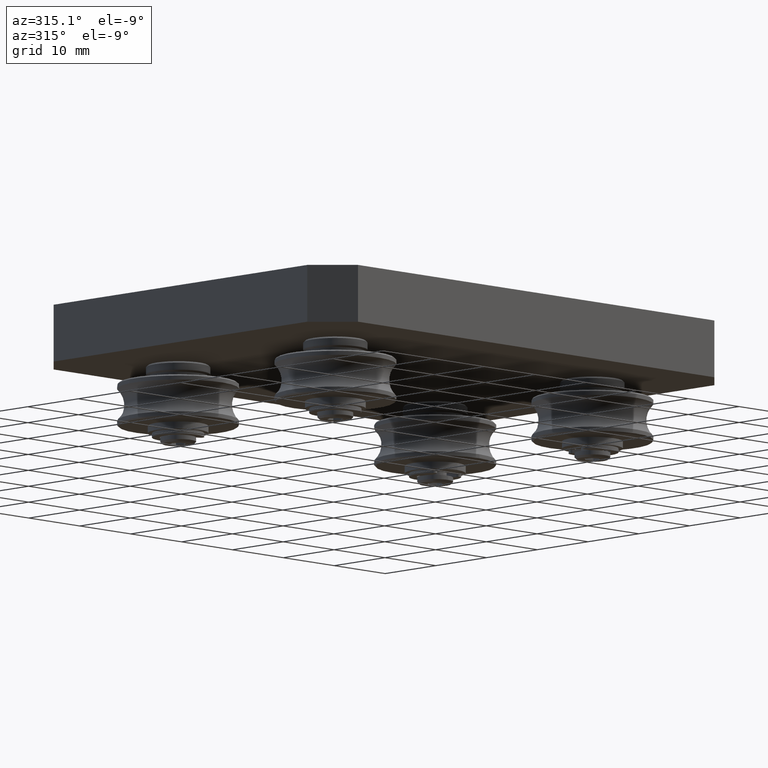
[diagram: clean part render]
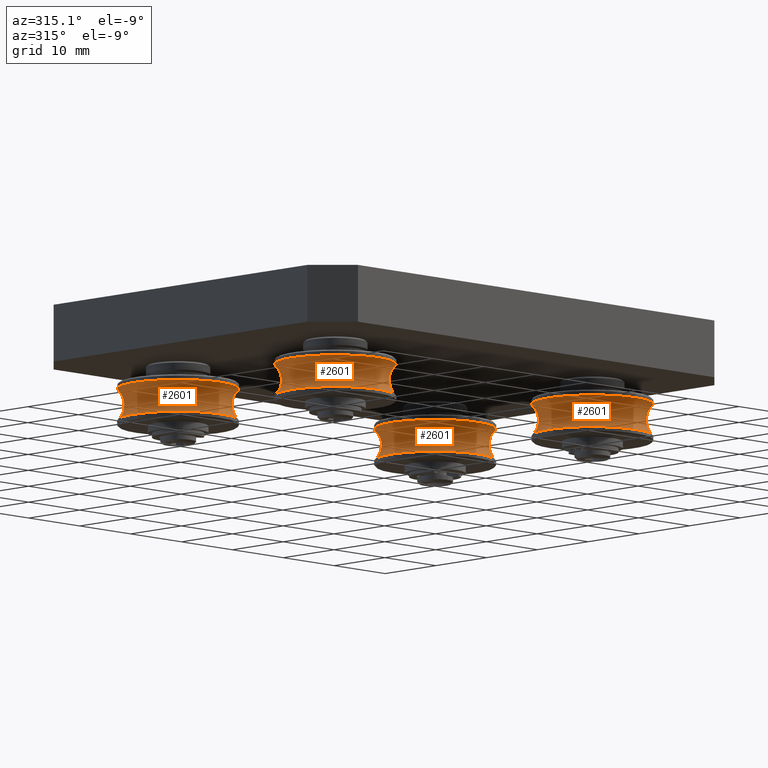
[diagram: same view with one multi-face feature highlighted, each face labeled with its STEP entity id]
A machine part, auxiliary view. The highlighted faces form ONE feature: a constant-radius fillet chain: 4 tangent blend faces with common blend radius 3 mm. The faces share edges in the B-rep.
Their STEP definitions:
[1] entity #2601 (Torus):
#83=TOROIDAL_SURFACE('',#3061,10.5,3.);
#288=CIRCLE('',#3046,8.5);
#289=CIRCLE('',#3047,8.5);
#293=CIRCLE('',#3053,8.5);
#294=CIRCLE('',#3054,8.5);
#298=CIRCLE('',#3062,3.);
#456=FACE_OUTER_BOUND('',#642,.T.);
#642=EDGE_LOOP('',(#2179,#2180,#2181,#2182,#2183,#2184));
#1254=VERTEX_POINT('',#4513);
#1255=VERTEX_POINT('',#4514);
#1259=VERTEX_POINT('',#4527);
#1260=VERTEX_POINT('',#4529);
#1566=EDGE_CURVE('',#1254,#1255,#288,.T.);
#1568=EDGE_CURVE('',#1255,#1254,#289,.T.);
#1574=EDGE_CURVE('',#1259,#1260,#293,.T.);
#1575=EDGE_CURVE('',#1260,#1259,#294,.T.);
#1580=EDGE_CURVE('',#1255,#1260,#298,.T.);
#2179=ORIENTED_EDGE('',*,*,#1566,.T.);
#2180=ORIENTED_EDGE('',*,*,#1580,.T.);
#2181=ORIENTED_EDGE('',*,*,#1574,.F.);
#2182=ORIENTED_EDGE('',*,*,#1575,.F.);
#2183=ORIENTED_EDGE('',*,*,#1580,.F.);
#2184=ORIENTED_EDGE('',*,*,#1568,.T.);
#2601=ADVANCED_FACE('',(#456),#83,.F.);
#3046=AXIS2_PLACEMENT_3D('',#4515,#3719,#3720);
#3047=AXIS2_PLACEMENT_3D('',#4517,#3722,#3723);
#3053=AXIS2_PLACEMENT_3D('',#4530,#3736,#3737);
#3054=AXIS2_PLACEMENT_3D('',#4531,#3738,#3739);
#3061=AXIS2_PLACEMENT_3D('',#4542,#3753,#3754);
#3062=AXIS2_PLACEMENT_3D('',#4543,#3755,#3756);
#3719=DIRECTION('center_axis',(1.,0.,0.));
#3720=DIRECTION('ref_axis',(0.,1.,0.));
#3722=DIRECTION('center_axis',(1.,0.,0.));
#3723=DIRECTION('ref_axis',(0.,1.,0.));
#3736=DIRECTION('center_axis',(1.,0.,0.));
#3737=DIRECTION('ref_axis',(0.,1.,0.));
#3738=DIRECTION('center_axis',(1.,0.,0.));
#3739=DIRECTION('ref_axis',(0.,1.,0.));
#3753=DIRECTION('center_axis',(1.,0.,0.));
#3754=DIRECTION('ref_axis',(0.,0.,-1.));
#3755=DIRECTION('center_axis',(0.,-1.,-1.22464679914735E-16));
#3756=DIRECTION('ref_axis',(0.,-1.22464679914735E-16,1.));
#4513=CARTESIAN_POINT('',(-2.23606797749979,-8.5,-1.04094977927525E-15));
#4514=CARTESIAN_POINT('',(-2.23606797749979,-1.04094977927525E-15,8.5));
#4515=CARTESIAN_POINT('Origin',(-2.23606797749979,0.,0.));
#4517=CARTESIAN_POINT('Origin',(-2.23606797749979,0.,0.));
#4527=CARTESIAN_POINT('',(2.23606797749979,-8.5,-1.04094977927525E-15));
#4529=CARTESIAN_POINT('',(2.23606797749979,-1.04094977927525E-15,8.5));
#4530=CARTESIAN_POINT('Origin',(2.23606797749979,0.,0.));
#4531=CARTESIAN_POINT('Origin',(2.23606797749979,0.,0.));
#4542=CARTESIAN_POINT('Origin',(0.,0.,0.));
#4543=CARTESIAN_POINT('Origin',(0.,-1.28587913910472E-15,10.5));
[2] entity #2601 (Torus):
#83=TOROIDAL_SURFACE('',#3061,10.5,3.);
#288=CIRCLE('',#3046,8.5);
#289=CIRCLE('',#3047,8.5);
#293=CIRCLE('',#3053,8.5);
#294=CIRCLE('',#3054,8.5);
#298=CIRCLE('',#3062,3.);
#456=FACE_OUTER_BOUND('',#642,.T.);
#642=EDGE_LOOP('',(#2179,#2180,#2181,#2182,#2183,#2184));
#1254=VERTEX_POINT('',#4513);
#1255=VERTEX_POINT('',#4514);
#1259=VERTEX_POINT('',#4527);
#1260=VERTEX_POINT('',#4529);
#1566=EDGE_CURVE('',#1254,#1255,#288,.T.);
#1568=EDGE_CURVE('',#1255,#1254,#289,.T.);
#1574=EDGE_CURVE('',#1259,#1260,#293,.T.);
#1575=EDGE_CURVE('',#1260,#1259,#294,.T.);
#1580=EDGE_CURVE('',#1255,#1260,#298,.T.);
#2179=ORIENTED_EDGE('',*,*,#1566,.T.);
#2180=ORIENTED_EDGE('',*,*,#1580,.T.);
#2181=ORIENTED_EDGE('',*,*,#1574,.F.);
#2182=ORIENTED_EDGE('',*,*,#1575,.F.);
#2183=ORIENTED_EDGE('',*,*,#1580,.F.);
#2184=ORIENTED_EDGE('',*,*,#1568,.T.);
#2601=ADVANCED_FACE('',(#456),#83,.F.);
#3046=AXIS2_PLACEMENT_3D('',#4515,#3719,#3720);
#3047=AXIS2_PLACEMENT_3D('',#4517,#3722,#3723);
#3053=AXIS2_PLACEMENT_3D('',#4530,#3736,#3737);
#3054=AXIS2_PLACEMENT_3D('',#4531,#3738,#3739);
#3061=AXIS2_PLACEMENT_3D('',#4542,#3753,#3754);
#3062=AXIS2_PLACEMENT_3D('',#4543,#3755,#3756);
#3719=DIRECTION('center_axis',(1.,0.,0.));
#3720=DIRECTION('ref_axis',(0.,1.,0.));
#3722=DIRECTION('center_axis',(1.,0.,0.));
#3723=DIRECTION('ref_axis',(0.,1.,0.));
#3736=DIRECTION('center_axis',(1.,0.,0.));
#3737=DIRECTION('ref_axis',(0.,1.,0.));
#3738=DIRECTION('center_axis',(1.,0.,0.));
#3739=DIRECTION('ref_axis',(0.,1.,0.));
#3753=DIRECTION('center_axis',(1.,0.,0.));
#3754=DIRECTION('ref_axis',(0.,0.,-1.));
#3755=DIRECTION('center_axis',(0.,-1.,-1.22464679914735E-16));
#3756=DIRECTION('ref_axis',(0.,-1.22464679914735E-16,1.));
#4513=CARTESIAN_POINT('',(-2.23606797749979,-8.5,-1.04094977927525E-15));
#4514=CARTESIAN_POINT('',(-2.23606797749979,-1.04094977927525E-15,8.5));
#4515=CARTESIAN_POINT('Origin',(-2.23606797749979,0.,0.));
#4517=CARTESIAN_POINT('Origin',(-2.23606797749979,0.,0.));
#4527=CARTESIAN_POINT('',(2.23606797749979,-8.5,-1.04094977927525E-15));
#4529=CARTESIAN_POINT('',(2.23606797749979,-1.04094977927525E-15,8.5));
#4530=CARTESIAN_POINT('Origin',(2.23606797749979,0.,0.));
#4531=CARTESIAN_POINT('Origin',(2.23606797749979,0.,0.));
#4542=CARTESIAN_POINT('Origin',(0.,0.,0.));
#4543=CARTESIAN_POINT('Origin',(0.,-1.28587913910472E-15,10.5));
[3] entity #2601 (Torus):
#83=TOROIDAL_SURFACE('',#3061,10.5,3.);
#288=CIRCLE('',#3046,8.5);
#289=CIRCLE('',#3047,8.5);
#293=CIRCLE('',#3053,8.5);
#294=CIRCLE('',#3054,8.5);
#298=CIRCLE('',#3062,3.);
#456=FACE_OUTER_BOUND('',#642,.T.);
#642=EDGE_LOOP('',(#2179,#2180,#2181,#2182,#2183,#2184));
#1254=VERTEX_POINT('',#4513);
#1255=VERTEX_POINT('',#4514);
#1259=VERTEX_POINT('',#4527);
#1260=VERTEX_POINT('',#4529);
#1566=EDGE_CURVE('',#1254,#1255,#288,.T.);
#1568=EDGE_CURVE('',#1255,#1254,#289,.T.);
#1574=EDGE_CURVE('',#1259,#1260,#293,.T.);
#1575=EDGE_CURVE('',#1260,#1259,#294,.T.);
#1580=EDGE_CURVE('',#1255,#1260,#298,.T.);
#2179=ORIENTED_EDGE('',*,*,#1566,.T.);
#2180=ORIENTED_EDGE('',*,*,#1580,.T.);
#2181=ORIENTED_EDGE('',*,*,#1574,.F.);
#2182=ORIENTED_EDGE('',*,*,#1575,.F.);
#2183=ORIENTED_EDGE('',*,*,#1580,.F.);
#2184=ORIENTED_EDGE('',*,*,#1568,.T.);
#2601=ADVANCED_FACE('',(#456),#83,.F.);
#3046=AXIS2_PLACEMENT_3D('',#4515,#3719,#3720);
#3047=AXIS2_PLACEMENT_3D('',#4517,#3722,#3723);
#3053=AXIS2_PLACEMENT_3D('',#4530,#3736,#3737);
#3054=AXIS2_PLACEMENT_3D('',#4531,#3738,#3739);
#3061=AXIS2_PLACEMENT_3D('',#4542,#3753,#3754);
#3062=AXIS2_PLACEMENT_3D('',#4543,#3755,#3756);
#3719=DIRECTION('center_axis',(1.,0.,0.));
#3720=DIRECTION('ref_axis',(0.,1.,0.));
#3722=DIRECTION('center_axis',(1.,0.,0.));
#3723=DIRECTION('ref_axis',(0.,1.,0.));
#3736=DIRECTION('center_axis',(1.,0.,0.));
#3737=DIRECTION('ref_axis',(0.,1.,0.));
#3738=DIRECTION('center_axis',(1.,0.,0.));
#3739=DIRECTION('ref_axis',(0.,1.,0.));
#3753=DIRECTION('center_axis',(1.,0.,0.));
#3754=DIRECTION('ref_axis',(0.,0.,-1.));
#3755=DIRECTION('center_axis',(0.,-1.,-1.22464679914735E-16));
#3756=DIRECTION('ref_axis',(0.,-1.22464679914735E-16,1.));
#4513=CARTESIAN_POINT('',(-2.23606797749979,-8.5,-1.04094977927525E-15));
#4514=CARTESIAN_POINT('',(-2.23606797749979,-1.04094977927525E-15,8.5));
#4515=CARTESIAN_POINT('Origin',(-2.23606797749979,0.,0.));
#4517=CARTESIAN_POINT('Origin',(-2.23606797749979,0.,0.));
#4527=CARTESIAN_POINT('',(2.23606797749979,-8.5,-1.04094977927525E-15));
#4529=CARTESIAN_POINT('',(2.23606797749979,-1.04094977927525E-15,8.5));
#4530=CARTESIAN_POINT('Origin',(2.23606797749979,0.,0.));
#4531=CARTESIAN_POINT('Origin',(2.23606797749979,0.,0.));
#4542=CARTESIAN_POINT('Origin',(0.,0.,0.));
#4543=CARTESIAN_POINT('Origin',(0.,-1.28587913910472E-15,10.5));
[4] entity #2601 (Torus):
#83=TOROIDAL_SURFACE('',#3061,10.5,3.);
#288=CIRCLE('',#3046,8.5);
#289=CIRCLE('',#3047,8.5);
#293=CIRCLE('',#3053,8.5);
#294=CIRCLE('',#3054,8.5);
#298=CIRCLE('',#3062,3.);
#456=FACE_OUTER_BOUND('',#642,.T.);
#642=EDGE_LOOP('',(#2179,#2180,#2181,#2182,#2183,#2184));
#1254=VERTEX_POINT('',#4513);
#1255=VERTEX_POINT('',#4514);
#1259=VERTEX_POINT('',#4527);
#1260=VERTEX_POINT('',#4529);
#1566=EDGE_CURVE('',#1254,#1255,#288,.T.);
#1568=EDGE_CURVE('',#1255,#1254,#289,.T.);
#1574=EDGE_CURVE('',#1259,#1260,#293,.T.);
#1575=EDGE_CURVE('',#1260,#1259,#294,.T.);
#1580=EDGE_CURVE('',#1255,#1260,#298,.T.);
#2179=ORIENTED_EDGE('',*,*,#1566,.T.);
#2180=ORIENTED_EDGE('',*,*,#1580,.T.);
#2181=ORIENTED_EDGE('',*,*,#1574,.F.);
#2182=ORIENTED_EDGE('',*,*,#1575,.F.);
#2183=ORIENTED_EDGE('',*,*,#1580,.F.);
#2184=ORIENTED_EDGE('',*,*,#1568,.T.);
#2601=ADVANCED_FACE('',(#456),#83,.F.);
#3046=AXIS2_PLACEMENT_3D('',#4515,#3719,#3720);
#3047=AXIS2_PLACEMENT_3D('',#4517,#3722,#3723);
#3053=AXIS2_PLACEMENT_3D('',#4530,#3736,#3737);
#3054=AXIS2_PLACEMENT_3D('',#4531,#3738,#3739);
#3061=AXIS2_PLACEMENT_3D('',#4542,#3753,#3754);
#3062=AXIS2_PLACEMENT_3D('',#4543,#3755,#3756);
#3719=DIRECTION('center_axis',(1.,0.,0.));
#3720=DIRECTION('ref_axis',(0.,1.,0.));
#3722=DIRECTION('center_axis',(1.,0.,0.));
#3723=DIRECTION('ref_axis',(0.,1.,0.));
#3736=DIRECTION('center_axis',(1.,0.,0.));
#3737=DIRECTION('ref_axis',(0.,1.,0.));
#3738=DIRECTION('center_axis',(1.,0.,0.));
#3739=DIRECTION('ref_axis',(0.,1.,0.));
#3753=DIRECTION('center_axis',(1.,0.,0.));
#3754=DIRECTION('ref_axis',(0.,0.,-1.));
#3755=DIRECTION('center_axis',(0.,-1.,-1.22464679914735E-16));
#3756=DIRECTION('ref_axis',(0.,-1.22464679914735E-16,1.));
#4513=CARTESIAN_POINT('',(-2.23606797749979,-8.5,-1.04094977927525E-15));
#4514=CARTESIAN_POINT('',(-2.23606797749979,-1.04094977927525E-15,8.5));
#4515=CARTESIAN_POINT('Origin',(-2.23606797749979,0.,0.));
#4517=CARTESIAN_POINT('Origin',(-2.23606797749979,0.,0.));
#4527=CARTESIAN_POINT('',(2.23606797749979,-8.5,-1.04094977927525E-15));
#4529=CARTESIAN_POINT('',(2.23606797749979,-1.04094977927525E-15,8.5));
#4530=CARTESIAN_POINT('Origin',(2.23606797749979,0.,0.));
#4531=CARTESIAN_POINT('Origin',(2.23606797749979,0.,0.));
#4542=CARTESIAN_POINT('Origin',(0.,0.,0.));
#4543=CARTESIAN_POINT('Origin',(0.,-1.28587913910472E-15,10.5));